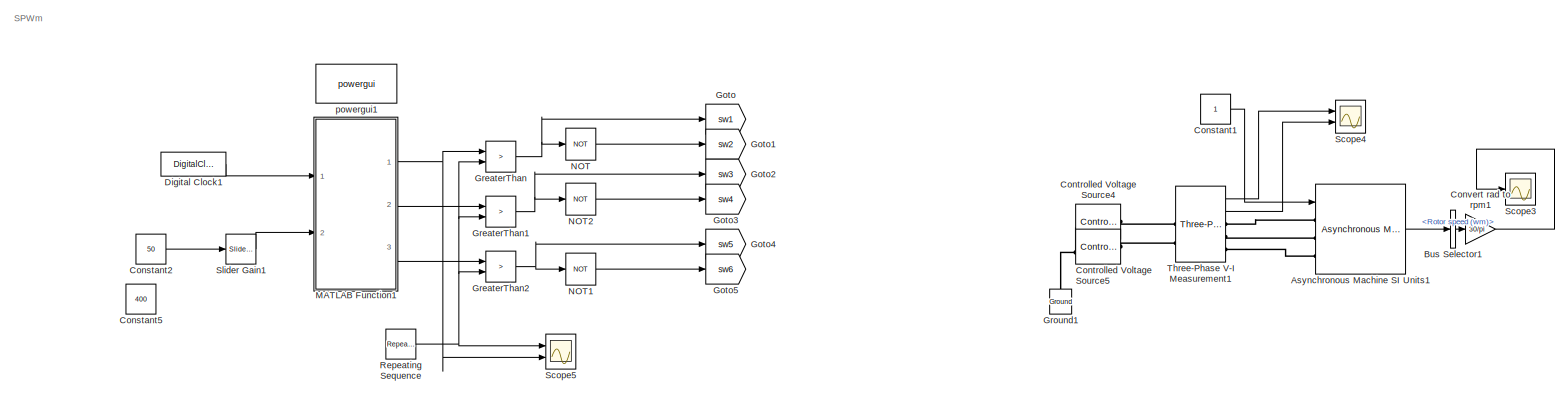
[diagram: root canvas - part 1/1, most of the canvas]
MODEL slx_3ab8f0f13292
KIND model
CONFIG AbsTol = auto
CONFIG EnableMultiTasking = off
CONFIG FixedStep = auto
CONFIG MaxStep = auto
CONFIG MinStep = auto
CONFIG RelTol = 1e-3
CONFIG SampleTimeConstraint = Unconstrained
CONFIG SolverName = VariableStepAuto
CONFIG StartTime = 0.0
CONFIG StopTime = 10.0
BLOCK [Reference] Asynchronous Machine SI Units1  REF=spsAsynchronousMachineSIUnitsLib/Asynchronous Machine
SI Units
  Commented = on
  Ports = [1, 1, 0, 0, 0, 3]
  SourceBlock = spsAsynchronousMachineSIUnitsLib/Asynchronous Machine\nSI Units
  SourceProductBaseCode = PS
  SourceType = Asynchronous Machine
BLOCK [BusSelector] Bus Selector1
  Commented = on
  OutputSignals = Mechanical.Rotor speed (wm)
  Ports = [1, 1]
BLOCK [Constant] Constant1
  Commented = on
BLOCK [Constant] Constant2
  Value = 50
BLOCK [Constant] Constant5
  Value = 400
BLOCK [Reference] Controlled Voltage Source4  REF=spsControlledVoltageSourceLib/Controlled Voltage Source
  Commented = on
  NameLocation = left
  Ports = [1, 0, 0, 0, 0, 1, 1]
  SourceBlock = spsControlledVoltageSourceLib/Controlled Voltage Source
  SourceProductBaseCode = PS
  SourceType = Controlled Voltage Source
BLOCK [Reference] Controlled Voltage Source5  REF=spsControlledVoltageSourceLib/Controlled Voltage Source
  Commented = on
  NameLocation = left
  Ports = [1, 0, 0, 0, 0, 1, 1]
  SourceBlock = spsControlledVoltageSourceLib/Controlled Voltage Source
  SourceProductBaseCode = PS
  SourceType = Controlled Voltage Source
BLOCK [Gain] Convert rad to rpm1
  Commented = on
  Gain = 30/pi
BLOCK [DigitalClock] Digital Clock1
  SampleTime = 1e-5
BLOCK [Goto] Goto
  GotoTag = sw1
BLOCK [Goto] Goto1
  GotoTag = sw2
BLOCK [Goto] Goto2
  GotoTag = sw3
BLOCK [Goto] Goto3
  GotoTag = sw4
BLOCK [Goto] Goto4
  GotoTag = sw5
BLOCK [Goto] Goto5
  GotoTag = sw6
BLOCK [RelationalOperator] GreaterThan
  InputSameDT = off
  Operator = >
  OutDataTypeStr = boolean
  Ports = [2, 1]
  RndMeth = Simplest
BLOCK [RelationalOperator] GreaterThan1
  InputSameDT = off
  Operator = >
  OutDataTypeStr = boolean
  Ports = [2, 1]
  RndMeth = Simplest
BLOCK [RelationalOperator] GreaterThan2
  InputSameDT = off
  Operator = >
  OutDataTypeStr = boolean
  Ports = [2, 1]
  RndMeth = Simplest
BLOCK [Reference] Ground1  REF=spsGroundLib/Ground
  Commented = on
  NameLocation = right
  Ports = [0, 0, 0, 0, 0, 1]
  SourceBlock = spsGroundLib/Ground
  SourceProductBaseCode = PS
  SourceType = Ground
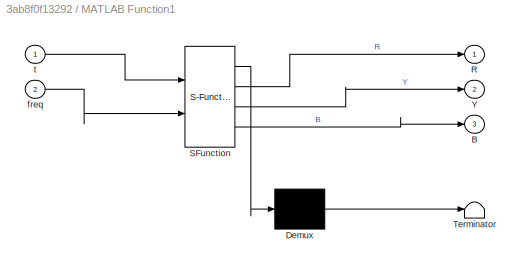
BLOCK [SubSystem] MATLAB Function1
  ErrorFcn = Stateflow.Translate.translate
  PermitHierarchicalResolution = ExplicitOnly
  Ports = [2, 3]
  RequestExecContextInheritance = off
  SFBlockType = MATLAB Function
  TreatAsAtomicUnit = on
BLOCK [Demux] MATLAB Function1/ Demux 
  Outputs = 1
  Ports = [1, 1]
BLOCK [S-Function] MATLAB Function1/ SFunction 
  EnableBusSupport = on
  FunctionName = sf_sfun
  PortCounts = [2 4]
  Ports = [2, 4]
  SFcnIsStateOwnerBlock = off
  SFunctionDeploymentMode = off
  Tag = Stateflow S-Function 1
BLOCK [Terminator] MATLAB Function1/ Terminator 
BLOCK [Outport] MATLAB Function1/B
  Port = 3
BLOCK [Outport] MATLAB Function1/R
BLOCK [Outport] MATLAB Function1/Y
  Port = 2
BLOCK [Inport] MATLAB Function1/freq
  Port = 2
BLOCK [Inport] MATLAB Function1/t
BLOCK [Logic] NOT
  AllPortsSameDT = off
  IconShape = distinctive
  Operator = NOT
  OutDataTypeStr = boolean
  Ports = [1, 1]
BLOCK [Logic] NOT1
  AllPortsSameDT = off
  IconShape = distinctive
  Operator = NOT
  OutDataTypeStr = boolean
  Ports = [1, 1]
BLOCK [Logic] NOT2
  AllPortsSameDT = off
  IconShape = distinctive
  Operator = NOT
  OutDataTypeStr = boolean
  Ports = [1, 1]
BLOCK [Reference] Repeating Sequence  REF=simulink/Sources/Repeating
Sequence
  Ports = [0, 1]
  SourceBlock = simulink/Sources/Repeating\nSequence
  SourceProductBaseCode = SL
  SourceType = Repeating table
BLOCK [Scope] Scope3
  Commented = on
  Floating = off
  NumInputPorts = 1
  Ports = [1]
  ScopeSpecificationString = Simulink.scopes.TimeScopeBlockCfg('CurrentConfiguration', extmgr.ConfigurationSet(extmgr.Configuration('Core','General UI',true),extmgr.Configuration('Core','Source UI',true),extmgr.Configuration('Sources','WiredSimulink',true,'DataLoggingVariableName','ScopeData1'),extmgr.Configuration('Visuals','Time Domain',true,'SerializedDisplays',{struct('MinYLimReal','-1149.25722','MaxYLimReal','-1132.5559'...<+1473ch>
BLOCK [Scope] Scope4
  Commented = on
  Floating = off
  NumInputPorts = 2
  Ports = [2]
  ScopeSpecificationString = Simulink.scopes.TimeScopeBlockCfg('CurrentConfiguration', extmgr.ConfigurationSet(extmgr.Configuration('Core','General UI',true),extmgr.Configuration('Core','Source UI',true),extmgr.Configuration('Sources','WiredSimulink',true,'DataLoggingVariableName','ScopeData2'),extmgr.Configuration('Visuals','Time Domain',true,'SerializedDisplays',{struct('MinYLimReal','-380.00000','MaxYLimReal','380.00000','...<+2208ch>
BLOCK [Scope] Scope5
  Floating = off
  NumInputPorts = 2
  Ports = [2]
  ScopeSpecificationString = Simulink.scopes.TimeScopeBlockCfg('CurrentConfiguration', extmgr.ConfigurationSet(extmgr.Configuration('Core','General UI',true),extmgr.Configuration('Core','Source UI',true),extmgr.Configuration('Sources','WiredSimulink',true),extmgr.Configuration('Visuals','Time Domain',true,'SerializedDisplays',{struct('MinYLimReal','-1.25','MaxYLimReal','1.25','YLabelReal','','MinYLimMag','0.00000','MaxYLimMag...<+1424ch>
BLOCK [Reference] Slider Gain1  REF=simulink/Math
Operations/Slider
Gain
  Ports = [1, 1]
  SourceBlock = simulink/Math\nOperations/Slider\nGain
  SourceProductBaseCode = SL
  SourceType = Slider Gain
BLOCK [Reference] Three-Phase V-I Measurement1  REF=spsThreePhaseVIMeasurementLib/Three-Phase
V-I Measurement
  Commented = on
  Ports = [0, 2, 0, 0, 0, 3, 3]
  SourceBlock = spsThreePhaseVIMeasurementLib/Three-Phase\nV-I Measurement
  SourceProductBaseCode = PS
  SourceType = Three-Phase VI Measurement
BLOCK [Reference] powergui1  REF=spspowerguiLib/powergui
  Ports = []
  Priority = 1
  SourceBlock = spspowerguiLib/powergui
  SourceProductBaseCode = PS
  SourceType = PSB option menu block
ANNOTATION (root): SPWm
LINE Asynchronous Machine SI Units1:1 -> Bus Selector1:1
LINE Bus Selector1:1 -> Convert rad to rpm1:1
LINE Constant1:1 -> Asynchronous Machine SI Units1:1
LINE Constant2:1 -> Slider Gain1:1
LINE Convert rad to rpm1:1 -> Scope3:1
LINE Digital Clock1:1 -> MATLAB Function1:1
NET GreaterThan1:1 -> Goto2:1, NOT2:1
NET GreaterThan2:1 -> Goto4:1, NOT1:1
NET GreaterThan:1 -> Goto:1, NOT:1
NET MATLAB Function1:1 -> GreaterThan:1, Scope5:2
LINE MATLAB Function1:2 -> GreaterThan1:1
LINE MATLAB Function1:3 -> GreaterThan2:1
LINE NOT1:1 -> Goto5:1
LINE NOT2:1 -> Goto3:1
LINE NOT:1 -> Goto1:1
NET Repeating Sequence:1 -> GreaterThan1:2, GreaterThan2:2, GreaterThan:2, Scope5:1
LINE Slider Gain1:1 -> MATLAB Function1:2
LINE Three-Phase V-I Measurement1:1 -> Scope4:1
LINE Three-Phase V-I Measurement1:2 -> Scope4:2
PLINE Asynchronous Machine SI Units1:LConn1 -- Three-Phase V-I Measurement1:RConn1
PLINE Asynchronous Machine SI Units1:LConn2 -- Three-Phase V-I Measurement1:RConn2
PLINE Asynchronous Machine SI Units1:LConn3 -- Three-Phase V-I Measurement1:RConn3
PNET net1: Controlled Voltage Source4:LConn1 -- Controlled Voltage Source5:LConn1 -- Ground1:LConn1
PLINE Controlled Voltage Source4:RConn1 -- Three-Phase V-I Measurement1:LConn2
PLINE Controlled Voltage Source5:RConn1 -- Three-Phase V-I Measurement1:LConn3
note: NET lines group one-source signal fan-out (src -> all destinations, sorted); 1:1 wires keep LINE; PNET lines group multi-terminal physical nets as a canonical sorted terminal list (undirected conserving connections); 2-terminal nets keep the pairwise PLINE form
CHART MATLAB Function1 states=1 transitions=1
  STATE_LABEL 'eML_blk_kernel()'
  STATE_LABEL 'SCRIPT:\nfunction [R,Y,B] = fcn(t,freq)\nomega = 2 * pi *freq;\nR = sin(omega * t) * freq/60;\nY = sin(omega * t+120*pi/180) * freq/60;\nB = sin(omega * t+240*pi/180) * freq/60;\n'
CHART  states=0 transitions=0
